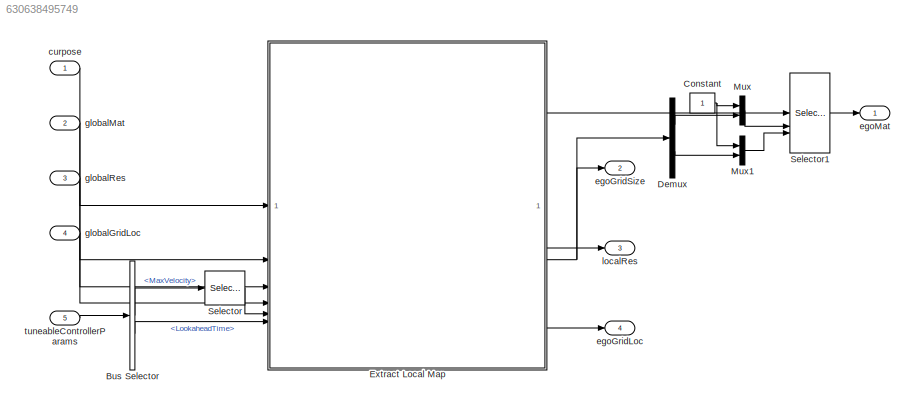
MODEL slx_630638495749
KIND model
CONFIG AbsTol = auto
CONFIG EnableMultiTasking = off
CONFIG FixedStep = auto
CONFIG MaxStep = auto
CONFIG MinStep = auto
CONFIG RelTol = 1e-3
CONFIG SampleTimeConstraint = Unconstrained
CONFIG SolverName = FixedStepAuto
CONFIG StartTime = 0.0
CONFIG StopTime = 10.0
BLOCK [BusSelector] Bus Selector
  NameLocation = right
  OutputSignals = MaxVelocity,LookaheadTime
BLOCK [Constant] Constant
BLOCK [Demux] Demux
  Outputs = 2
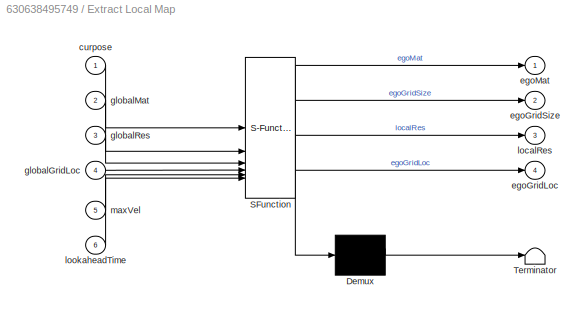
BLOCK [SubSystem] Extract Local Map
  ErrorFcn = Stateflow.Translate.translate
  LibrarySourceBlock = simulink/User-Defined\nFunctions/MATLAB Function
  PermitHierarchicalResolution = ExplicitOnly
  SFBlockType = MATLAB Function
  TreatAsAtomicUnit = on
BLOCK [Demux] Extract Local Map/ Demux 
  Outputs = 1
BLOCK [S-Function] Extract Local Map/ SFunction 
  EnableBusSupport = on
  FunctionName = sf_sfun
  PortCounts = [6 5]
  SFcnIsStateOwnerBlock = off
  SFunctionDeploymentMode = off
  Tag = Stateflow S-Function 1
BLOCK [Terminator] Extract Local Map/ Terminator 
BLOCK [Inport] Extract Local Map/curpose
BLOCK [Outport] Extract Local Map/egoGridLoc
  Port = 4
BLOCK [Outport] Extract Local Map/egoGridSize
  Port = 2
BLOCK [Outport] Extract Local Map/egoMat
BLOCK [Inport] Extract Local Map/globalGridLoc
  Port = 4
BLOCK [Inport] Extract Local Map/globalMat
  Port = 2
BLOCK [Inport] Extract Local Map/globalRes
  Port = 3
BLOCK [Outport] Extract Local Map/localRes
  Port = 3
BLOCK [Inport] Extract Local Map/lookaheadTime
  Port = 6
BLOCK [Inport] Extract Local Map/maxVel
  Port = 5
BLOCK [Mux] Mux
  DisplayOption = bar
  Inputs = 2
BLOCK [Mux] Mux1
  DisplayOption = bar
  Inputs = 2
BLOCK [Selector] Selector
  IndexOptions = Index vector (dialog)
  Indices = 1
  InputPortWidth = 2
  OutputSizes = 1
BLOCK [Selector] Selector1
  IndexOptions = Starting and ending indices (port),Starting and ending indices (port)
  Indices = [1 3],1
  InputPortWidth = 3
  NumberOfDimensions = 2
  OutputSizes = 1,1
BLOCK [Inport] curpose
  PortDimensions = [1 3]
BLOCK [Outport] egoGridLoc
  OutDataTypeStr = double
  Port = 4
BLOCK [Outport] egoGridSize
  OutDataTypeStr = double
  Port = 2
BLOCK [Outport] egoMat
  OutDataTypeStr = boolean
BLOCK [Inport] globalGridLoc
  Port = 4
  PortDimensions = [1 2]
BLOCK [Inport] globalMat
  OutDataTypeStr = boolean
  Port = 2
  PortDimensions = [1201 1201]
BLOCK [Inport] globalRes
  Port = 3
  PortDimensions = 1
BLOCK [Outport] localRes
  OutDataTypeStr = double
  Port = 3
BLOCK [Inport] tuneableControllerParams
  OutDataTypeStr = Bus: controller_bus
  Port = 5
LINE Bus Selector:1 -> Selector:1
LINE Bus Selector:2 -> Extract Local Map:6
NET Constant:1 -> Mux1:1, Mux:1
LINE Demux:1 -> Mux:2
LINE Demux:2 -> Mux1:2
LINE Extract Local Map:1 -> Selector1:1
NET Extract Local Map:2 -> Demux:1, egoGridSize:1
LINE Extract Local Map:3 -> localRes:1
LINE Extract Local Map:4 -> egoGridLoc:1
LINE Mux1:1 -> Selector1:3
LINE Mux:1 -> Selector1:2
LINE Selector1:1 -> egoMat:1
LINE Selector:1 -> Extract Local Map:5
LINE curpose:1 -> Extract Local Map:1
LINE globalGridLoc:1 -> Extract Local Map:4
LINE globalMat:1 -> Extract Local Map:2
LINE globalRes:1 -> Extract Local Map:3
LINE tuneableControllerParams:1 -> Bus Selector:1
note: NET lines group one-source signal fan-out (src -> all destinations, sorted); 1:1 wires keep LINE
CHART Extract Local Map states=1 transitions=1
  STATE_LABEL 'eML_blk_kernel()'
  STATE_LABEL 'SCRIPT:\nfunction [egoMat,egoGridSize,localRes,egoGridLoc] = extractLocalMap(curpose,globalMat,globalRes,globalGridLoc,maxVel,lookaheadTime)\n    persistent globalMap\n    \n    if isempty(globalMap)\n        globalMap = binaryOccupancyMap(globalMat,globalRes);\n        globalMap.GridLocationInWorld = globalGridLoc;\n    else\n        % Check if global map needs to be updated\n        if ~isequal(globalMat...<+759ch>'
CHART  states=0 transitions=0
